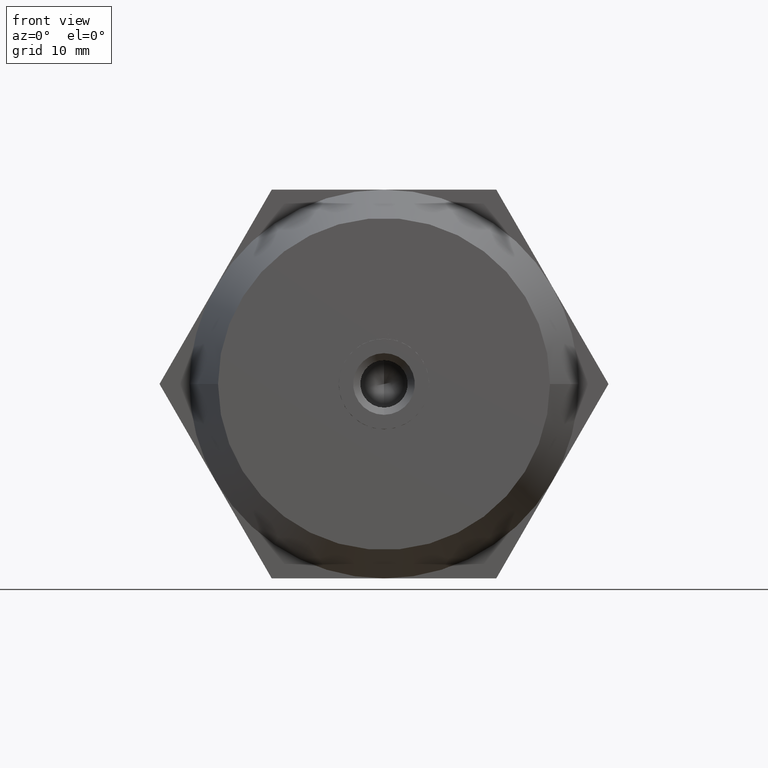
[diagram: clean part render]
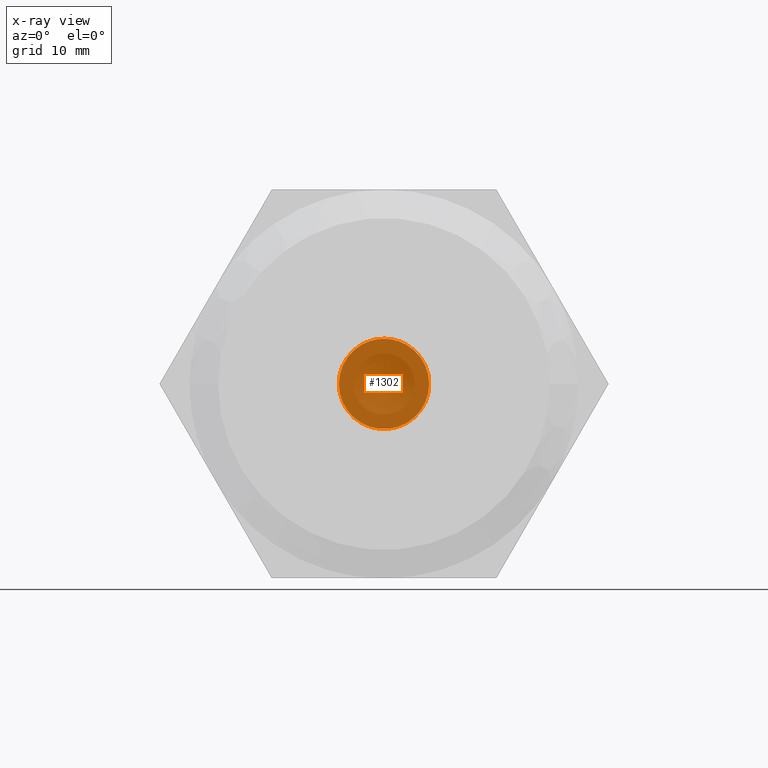
[diagram: x-ray — body ghosted, one internal face saturated and labeled with its STEP entity id]
A machine part, front view, then the same camera in x-ray: the body is ghosted and one INTERNAL B-rep face — a face not visible from any outside direction — is saturated and labeled: STEP entity #1302.
In plain terms, the highlighted planar face has unit normal (0, 1, 0).
Its self-contained STEP definition (entity closure, byte-faithful):
#19 = EDGE_CURVE ( 'NONE', #1109, #3752, #511, .T. ) ;
#73 = CARTESIAN_POINT ( 'NONE',  ( 0.0000000000000000000, 14.51000000000000000, 0.0000000000000000000 ) ) ;
#154 = DIRECTION ( 'NONE',  ( 0.0000000000000000000, 1.000000000000000000, 0.0000000000000000000 ) ) ;
#165 = CARTESIAN_POINT ( 'NONE',  ( 0.0000000000000000000, 14.51000000000000000, 0.0000000000000000000 ) ) ;
#176 = AXIS2_PLACEMENT_3D ( 'NONE', #165, #3478, #2260 ) ;
#224 = CARTESIAN_POINT ( 'NONE',  ( 0.0000000000000000000, 14.51000000000000000, 0.0000000000000000000 ) ) ;
#236 = AXIS2_PLACEMENT_3D ( 'NONE', #2320, #1694, #3808 ) ;
#282 = CIRCLE ( 'NONE', #176, 4.762500000000000200 ) ;
#485 = AXIS2_PLACEMENT_3D ( 'NONE', #1436, #3560, #1755 ) ;
#495 = CARTESIAN_POINT ( 'NONE',  ( 0.0000000000000000000, 14.51000000000000000, 4.762500000000000200 ) ) ;
#511 = CIRCLE ( 'NONE', #1508, 4.762500000000000200 ) ;
#523 = DIRECTION ( 'NONE',  ( -0.0000000000000000000, -1.000000000000000000, -0.0000000000000000000 ) ) ;
#542 = ORIENTED_EDGE ( 'NONE', *, *, #1168, .F. ) ;
#580 = DIRECTION ( 'NONE',  ( -0.0000000000000000000, -1.000000000000000000, -0.0000000000000000000 ) ) ;
#586 = EDGE_LOOP ( 'NONE', ( #1864, #975, #542, #593, #3428, #3271, #1998 ) ) ;
#593 = ORIENTED_EDGE ( 'NONE', *, *, #1461, .F. ) ;
#640 = DIRECTION ( 'NONE',  ( 3.552713678800500900E-015, 0.0000000000000000000, 1.000000000000000000 ) ) ;
#738 = VERTEX_POINT ( 'NONE', #1001 ) ;
#831 = DIRECTION ( 'NONE',  ( 0.0000000000000000000, 0.0000000000000000000, 1.000000000000000000 ) ) ;
#893 = CARTESIAN_POINT ( 'NONE',  ( -2.381250000000000100, 14.50999999999941900, -4.124445985523444800 ) ) ;
#975 = ORIENTED_EDGE ( 'NONE', *, *, #2889, .F. ) ;
#1001 = CARTESIAN_POINT ( 'NONE',  ( 2.381249999999965000, 14.50999999999939900, 4.124445985523424300 ) ) ;
#1076 = AXIS2_PLACEMENT_3D ( 'NONE', #73, #2500, #2823 ) ;
#1109 = VERTEX_POINT ( 'NONE', #1273 ) ;
#1124 = EDGE_CURVE ( 'NONE', #738, #1808, #3223, .T. ) ;
#1147 = AXIS2_PLACEMENT_3D ( 'NONE', #2675, #580, #2662 ) ;
#1168 = EDGE_CURVE ( 'NONE', #2767, #2084, #282, .T. ) ;
#1273 = CARTESIAN_POINT ( 'NONE',  ( -2.381250000000000100, 14.51000000000000000, 4.124445985523419900 ) ) ;
#1282 = CARTESIAN_POINT ( 'NONE',  ( 4.762500000000000200, 14.51000000000000000, 0.0000000000000000000 ) ) ;
#1302 = ADVANCED_FACE ( 'NONE', ( #1307 ), #1959, .T. ) ;
#1307 = FACE_OUTER_BOUND ( 'NONE', #586, .T. ) ;
#1372 = CARTESIAN_POINT ( 'NONE',  ( 0.0000000000000000000, 14.51000000000000000, 0.0000000000000000000 ) ) ;
#1436 = CARTESIAN_POINT ( 'NONE',  ( 0.0000000000000000000, 14.51000000000000000, 0.0000000000000000000 ) ) ;
#1443 = EDGE_CURVE ( 'NONE', #3752, #2022, #1867, .T. ) ;
#1461 = EDGE_CURVE ( 'NONE', #2022, #2767, #2887, .T. ) ;
#1508 = AXIS2_PLACEMENT_3D ( 'NONE', #224, #523, #831 ) ;
#1627 = DIRECTION ( 'NONE',  ( -0.0000000000000000000, -1.000000000000000000, -0.0000000000000000000 ) ) ;
#1694 = DIRECTION ( 'NONE',  ( -0.0000000000000000000, -1.000000000000000000, -0.0000000000000000000 ) ) ;
#1755 = DIRECTION ( 'NONE',  ( 1.776356839400250500E-015, 0.0000000000000000000, 1.000000000000000000 ) ) ;
#1782 = EDGE_CURVE ( 'NONE', #1808, #1109, #1986, .T. ) ;
#1808 = VERTEX_POINT ( 'NONE', #495 ) ;
#1864 = ORIENTED_EDGE ( 'NONE', *, *, #1124, .F. ) ;
#1867 = CIRCLE ( 'NONE', #1147, 4.762500000000000200 ) ;
#1936 = CIRCLE ( 'NONE', #1076, 4.762500000000000200 ) ;
#1959 = PLANE ( 'NONE',  #2862 ) ;
#1986 = CIRCLE ( 'NONE', #236, 4.762500000000000200 ) ;
#1998 = ORIENTED_EDGE ( 'NONE', *, *, #1782, .F. ) ;
#2022 = VERTEX_POINT ( 'NONE', #893 ) ;
#2084 = VERTEX_POINT ( 'NONE', #1282 ) ;
#2120 = CARTESIAN_POINT ( 'NONE',  ( 2.381250000000065400, 14.50999999999941900, -4.124445985523409200 ) ) ;
#2260 = DIRECTION ( 'NONE',  ( 0.0000000000000000000, 0.0000000000000000000, 1.000000000000000000 ) ) ;
#2267 = DIRECTION ( 'NONE',  ( 0.0000000000000000000, 0.0000000000000000000, 1.000000000000000000 ) ) ;
#2320 = CARTESIAN_POINT ( 'NONE',  ( 0.0000000000000000000, 14.51000000000000000, 0.0000000000000000000 ) ) ;
#2419 = CARTESIAN_POINT ( 'NONE',  ( -4.762500000000000200, 14.51000000000000000, -6.938893903907230000E-015 ) ) ;
#2466 = AXIS2_PLACEMENT_3D ( 'NONE', #3615, #1627, #640 ) ;
#2500 = DIRECTION ( 'NONE',  ( -0.0000000000000000000, -1.000000000000000000, -0.0000000000000000000 ) ) ;
#2662 = DIRECTION ( 'NONE',  ( 0.0000000000000000000, 0.0000000000000000000, 1.000000000000000000 ) ) ;
#2675 = CARTESIAN_POINT ( 'NONE',  ( 0.0000000000000000000, 14.51000000000000000, 0.0000000000000000000 ) ) ;
#2767 = VERTEX_POINT ( 'NONE', #2120 ) ;
#2823 = DIRECTION ( 'NONE',  ( -1.776356839400250500E-015, 0.0000000000000000000, 1.000000000000000000 ) ) ;
#2862 = AXIS2_PLACEMENT_3D ( 'NONE', #1372, #154, #2267 ) ;
#2887 = CIRCLE ( 'NONE', #485, 4.762500000000000200 ) ;
#2889 = EDGE_CURVE ( 'NONE', #2084, #738, #1936, .T. ) ;
#3223 = CIRCLE ( 'NONE', #2466, 4.762500000000000200 ) ;
#3271 = ORIENTED_EDGE ( 'NONE', *, *, #19, .F. ) ;
#3428 = ORIENTED_EDGE ( 'NONE', *, *, #1443, .F. ) ;
#3478 = DIRECTION ( 'NONE',  ( -0.0000000000000000000, -1.000000000000000000, -0.0000000000000000000 ) ) ;
#3560 = DIRECTION ( 'NONE',  ( -0.0000000000000000000, -1.000000000000000000, -0.0000000000000000000 ) ) ;
#3615 = CARTESIAN_POINT ( 'NONE',  ( 0.0000000000000000000, 14.51000000000000000, 0.0000000000000000000 ) ) ;
#3752 = VERTEX_POINT ( 'NONE', #2419 ) ;
#3808 = DIRECTION ( 'NONE',  ( 0.0000000000000000000, 0.0000000000000000000, 1.000000000000000000 ) ) ;